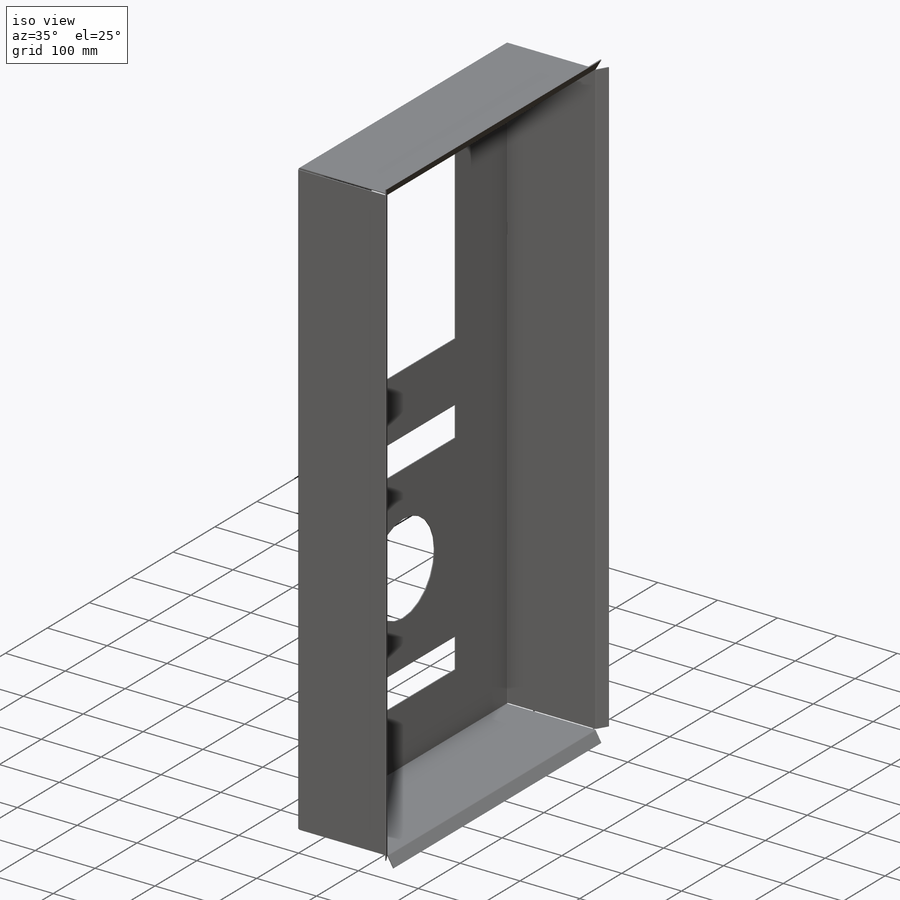
[diagram: iso view]
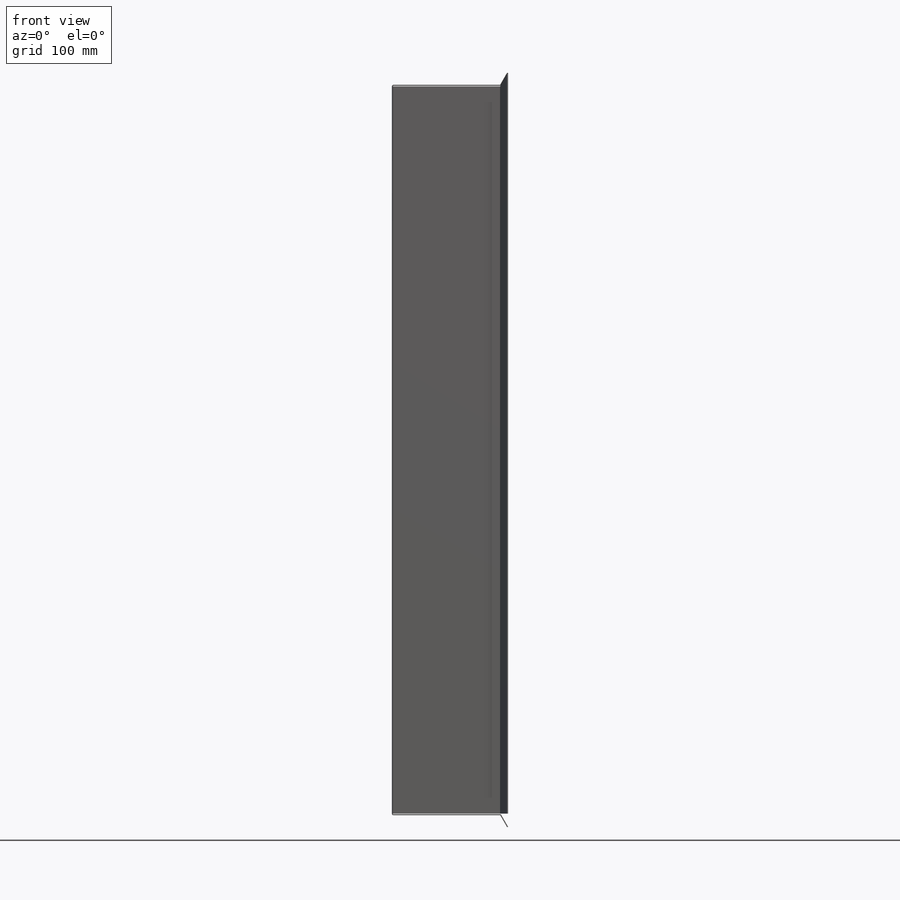
[diagram: front view]
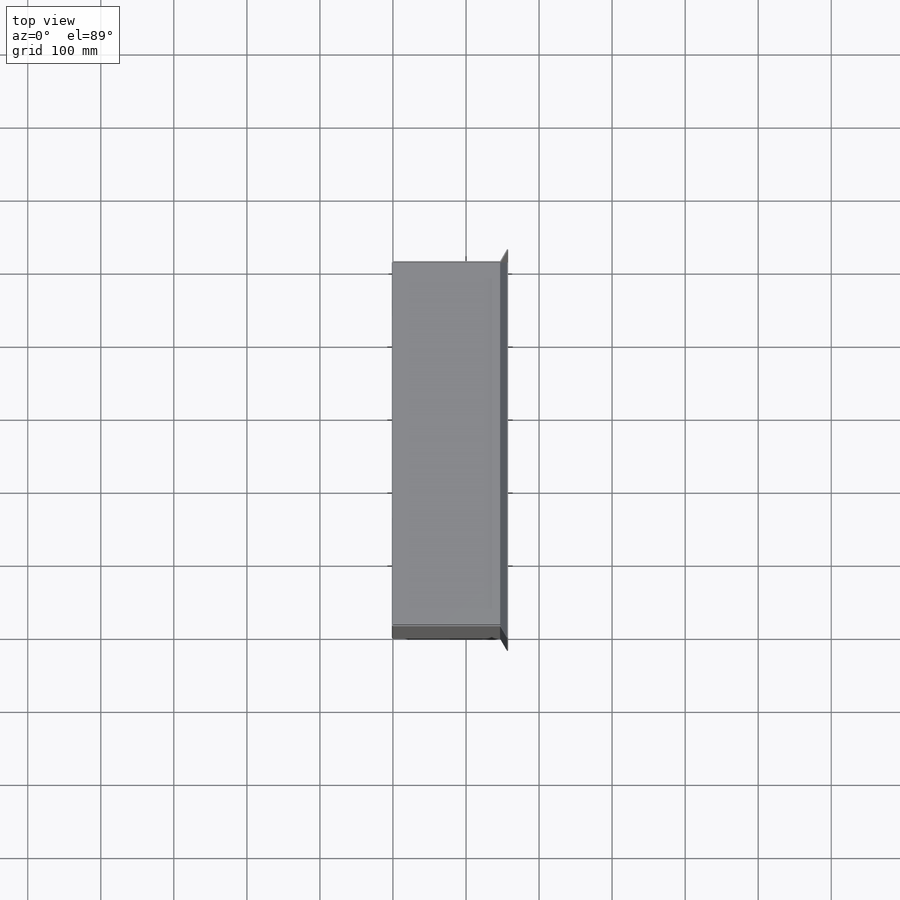
[diagram: top view]
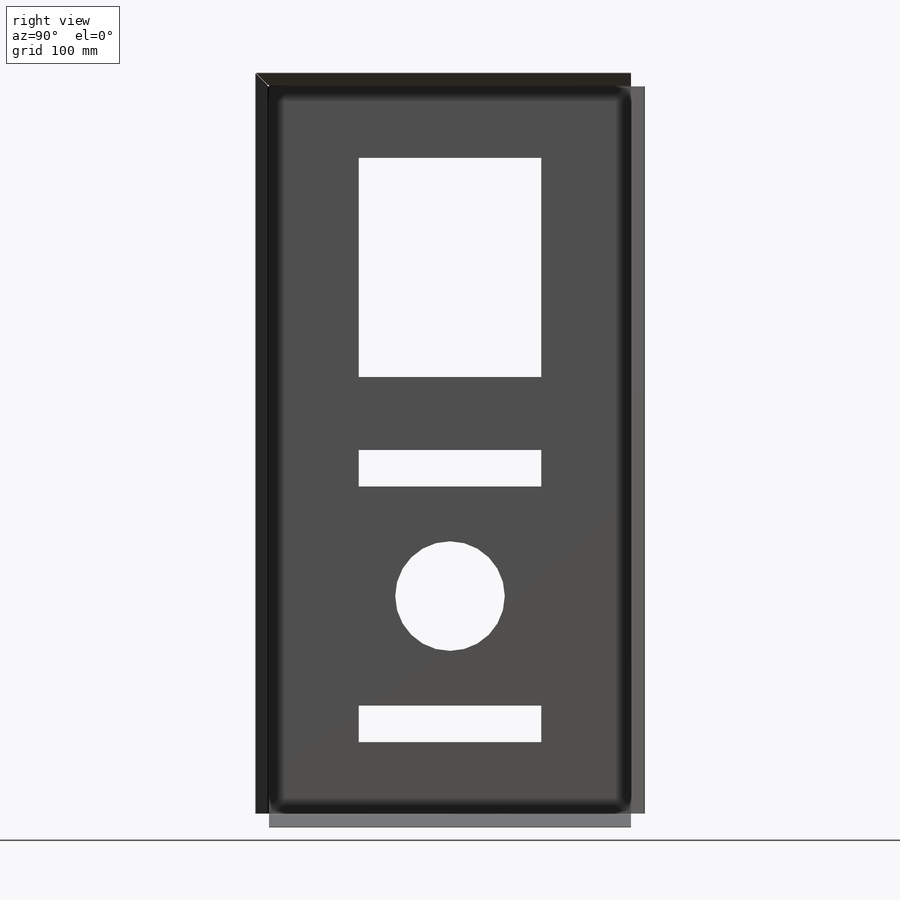
[diagram: right view]
SOLIDWORKS PART (.sldprt)
format: sldprt  version: not decoded by parser v0  size: 414,208 bytes
history: native  units: mm
features: sketch x20, sheet_metal_op x12, plane x3, extrude x3, material x1, cut_extrude x1 + 20 further entries (+9 scaffold rows collapsed; 4 parser-record rows omitted)
feature tree (73):
  scaffold x9  (default folders/planes/origin — collapsed)
  material  "Material <nicht festgelegt>"
  plane  "Ebene vorne"
  plane  "Ebene oben"
  plane  "Ebene rechts"
  sketch  "Skizze1"  dims[c1.D1=500.0mm c1.D2=1000.0mm c2.D1=0.7366mm c2.D2=0.5 c2.D3=0.0mm c2.D6=500.0mm]
  sheet_metal_op  "Basis-Blech1"
  sketch  "Skizze14"
  sketch  "Skizze15"
  sketch  "Skizze16"
  sketch  "Skizze17"  dims[D1=0.7366mm D4=90.0deg D5=1.0 D8=0.75mm D9=0.75mm]
  sheet_metal_op  "Kantenbiegung2"
  sheet_metal_op  "Kantenbiegung3"
  sheet_metal_op  "Kantenbiegung4"  Kante-Lasche2=0
  sketch  "Skizze26"
  sketch  "Skizze27"
  sketch  "Skizze28"
  sketch  "Skizze29"
  sheet_metal_op  "Kantenbiegung5"
  sheet_metal_op  "Kantenbiegung6"
  sheet_metal_op  "Kantenbiegung7"
  sheet_metal_op  "Kantenbiegung8"
  sketch  "Skizze30"  dims[D5=150.0mm D1=250.0mm D2=300.0mm D3=100.0mm D4=125.0mm D6=250.0mm D7=300.0mm D8=50.0mm D9=250.0mm D10=100.0mm]
  cut_extrude  "Schnitt-Linear austragen1"  Depth=10mm
  sketch  "Biegung-Linien1"
  sketch  "Rahmen1"
  sheet_metal_op  "Blech(1)"
  "Abwicklung(1)"
  sketch  "Biegung-Linien2"
  sketch  "Rahmen2"
  parser-record x4  (decoder bookkeeping rows leaked as tree rows — omitted from the tree; the rows remain in map.json)
  extrude  "Blech(2)"  Depth=0.7366mm
  sheet_metal_op  "Abwicklung(1)"
  sketch  "Biegung-Linien2"
  sketch  "Rahmen2"
  "Abwickeln-<Kantenbiegung2>1"
  "Abwickeln-<Kantenbiegung3>1"
  "Abwickeln-<Kantenbiegung4>1"
  extrude  "Blech(3)"  Depth=0.7366mm
  sheet_metal_op  "Abwicklung(1)"
  sketch  "Biegung-Linien2"
  sketch  "Rahmen2"
  "Abwickeln-<Kantenbiegung1>1"
  "Abwickeln-<Kantenbiegung2>1"
  "Abwickeln-<Kantenbiegung3>1"
  "Abwickeln-<Kantenbiegung4>1"
  "Abwickeln-<Kantenbiegung5>1"
  "Abwickeln-<Kantenbiegung6>1"
  "Abwickeln-<Kantenbiegung7>1"
  "Abwickeln-<Kantenbiegung8>1"
  extrude  "Blech(4)"  Depth=0.7366mm
  sheet_metal_op  "Abwicklung(1)"
  sketch  "Biegung-Linien2"
  sketch  "Rahmen2"
  "Abwickeln-<Kantenbiegung1>1"
  "Abwickeln-<Kantenbiegung2>1"
  "Abwickeln-<Kantenbiegung3>1"
  "Abwickeln-<Kantenbiegung4>1"
  "Abwickeln-<Kantenbiegung5>1"
  "Abwickeln-<Kantenbiegung6>1"
  "Abwickeln-<Kantenbiegung7>1"
  "Abwickeln-<Kantenbiegung8>1"
decode coverage: 8 of 36 modeling features carry decoded parameters; 20 rows unclassified (native names shown)
note: suppression state not decoded; provenance and decode notes live in map.json
